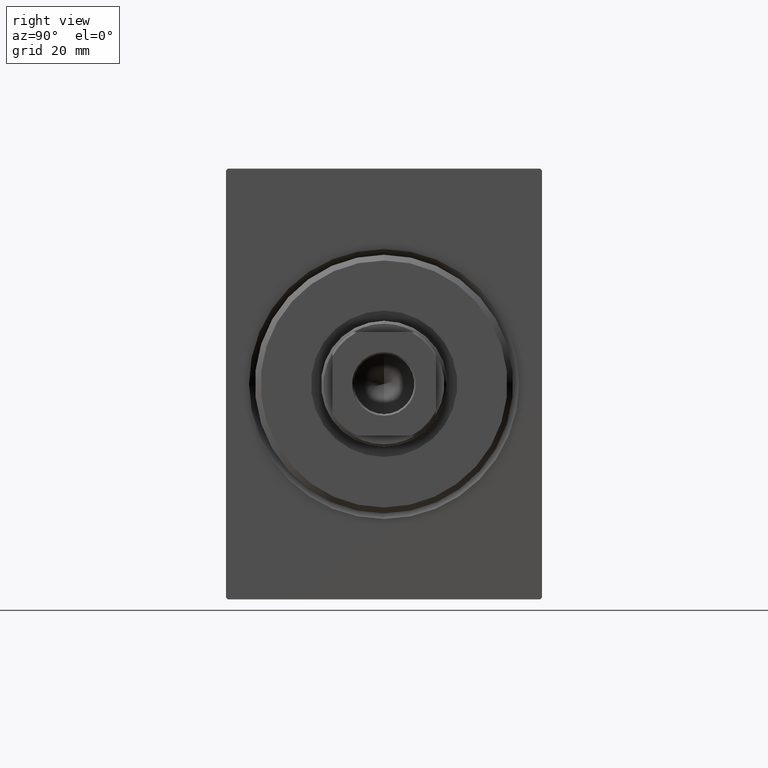
[diagram: clean part render]
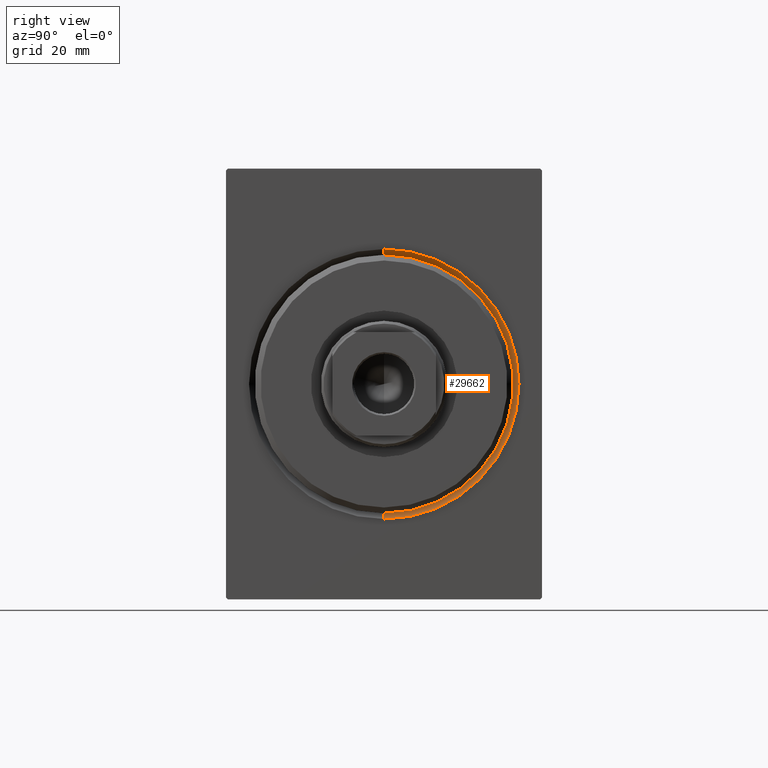
[diagram: same view with one face highlighted and labeled with its STEP entity id]
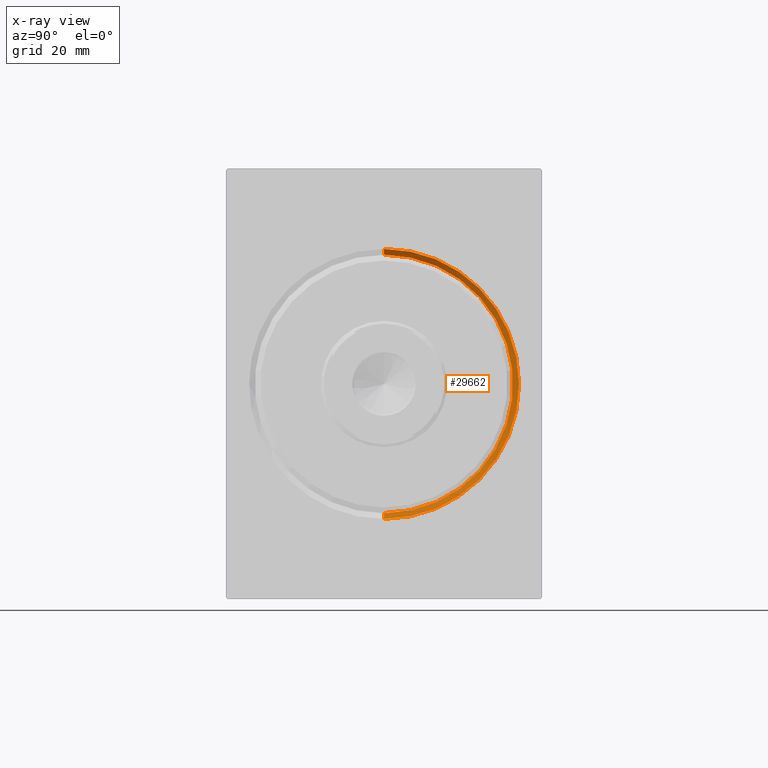
[diagram: x-ray of the same camera — body ghosted, the highlighted face saturated]
A machine part, right view. The second image highlights one B-rep face of the part: STEP entity #29662.
The next image is the same camera in x-ray: the body ghosted, the highlighted face saturated — about 0% of this face is hidden behind the body in this view.
In plain terms, the highlighted conical surface has half-angle 45 deg.
Its self-contained STEP definition (entity closure, byte-faithful):
#282 = EDGE_LOOP ( 'NONE', ( #35660, #8478, #38094, #39786 ) ) ;
#582 = EDGE_CURVE ( 'NONE', #33371, #32227, #13138, .T. ) ;
#673 = DIRECTION ( 'NONE',  ( -1.000000000000000000, 0.000000000000000000, 0.000000000000000000 ) ) ;
#3067 = CARTESIAN_POINT ( 'NONE',  ( 0.000000000000000000, 0.000000000000000000, 0.000000000000000000 ) ) ;
#3653 = CONICAL_SURFACE ( 'NONE', #19458, 22.50000000000000355, 0.7853981633974482790 ) ;
#3833 = CARTESIAN_POINT ( 'NONE',  ( 0.000000000000000000, 2.877919977996280715E-15, -23.50000000000000355 ) ) ;
#4441 = LINE ( 'NONE', #17553, #25809 ) ;
#5533 = CARTESIAN_POINT ( 'NONE',  ( 1.000000000000000888, 2.755455298081545172E-15, -22.50000000000000355 ) ) ;
#6898 = CARTESIAN_POINT ( 'NONE',  ( 1.000000000000000888, 0.000000000000000000, 22.50000000000000355 ) ) ;
#7114 = DIRECTION ( 'NONE',  ( -0.7071067811865474617, 0.000000000000000000, 0.7071067811865474617 ) ) ;
#8157 = CARTESIAN_POINT ( 'NONE',  ( 1.000000000000000888, 0.000000000000000000, 0.000000000000000000 ) ) ;
#8478 = ORIENTED_EDGE ( 'NONE', *, *, #21478, .T. ) ;
#10426 = VECTOR ( 'NONE', #7114, 1000.000000000000114 ) ;
#10431 = CIRCLE ( 'NONE', #18657, 22.50000000000000355 ) ;
#13138 = LINE ( 'NONE', #6898, #10426 ) ;
#13949 = VERTEX_POINT ( 'NONE', #3833 ) ;
#15798 = CARTESIAN_POINT ( 'NONE',  ( 1.000000000000000888, 0.000000000000000000, 0.000000000000000000 ) ) ;
#17553 = CARTESIAN_POINT ( 'NONE',  ( 1.000000000000000888, 2.755455298081545172E-15, -22.50000000000000355 ) ) ;
#18657 = AXIS2_PLACEMENT_3D ( 'NONE', #15798, #673, #42024 ) ;
#19458 = AXIS2_PLACEMENT_3D ( 'NONE', #8157, #31166, #26778 ) ;
#21478 = EDGE_CURVE ( 'NONE', #24403, #13949, #4441, .T. ) ;
#23270 = DIRECTION ( 'NONE',  ( 0.000000000000000000, 0.000000000000000000, -1.000000000000000000 ) ) ;
#24403 = VERTEX_POINT ( 'NONE', #5533 ) ;
#25809 = VECTOR ( 'NONE', #34108, 1000.000000000000114 ) ;
#25969 = CARTESIAN_POINT ( 'NONE',  ( 1.000000000000000888, 0.000000000000000000, 22.50000000000000355 ) ) ;
#26520 = EDGE_CURVE ( 'NONE', #24403, #33371, #10431, .T. ) ;
#26778 = DIRECTION ( 'NONE',  ( 0.000000000000000000, 0.000000000000000000, 1.000000000000000000 ) ) ;
#29230 = CIRCLE ( 'NONE', #31953, 23.50000000000000355 ) ;
#29662 = ADVANCED_FACE ( 'NONE', ( #40833 ), #3653, .F. ) ;
#31166 = DIRECTION ( 'NONE',  ( -1.000000000000000000, 0.000000000000000000, 0.000000000000000000 ) ) ;
#31953 = AXIS2_PLACEMENT_3D ( 'NONE', #3067, #32733, #23270 ) ;
#32227 = VERTEX_POINT ( 'NONE', #41179 ) ;
#32733 = DIRECTION ( 'NONE',  ( 1.000000000000000000, 0.000000000000000000, 0.000000000000000000 ) ) ;
#33371 = VERTEX_POINT ( 'NONE', #25969 ) ;
#34108 = DIRECTION ( 'NONE',  ( -0.7071067811865474617, 8.659560562354932858E-17, -0.7071067811865474617 ) ) ;
#35660 = ORIENTED_EDGE ( 'NONE', *, *, #26520, .F. ) ;
#37180 = EDGE_CURVE ( 'NONE', #32227, #13949, #29230, .T. ) ;
#38094 = ORIENTED_EDGE ( 'NONE', *, *, #37180, .F. ) ;
#39786 = ORIENTED_EDGE ( 'NONE', *, *, #582, .F. ) ;
#40833 = FACE_OUTER_BOUND ( 'NONE', #282, .T. ) ;
#41179 = CARTESIAN_POINT ( 'NONE',  ( 0.000000000000000000, 0.000000000000000000, 23.50000000000000355 ) ) ;
#42024 = DIRECTION ( 'NONE',  ( 0.000000000000000000, 0.000000000000000000, -1.000000000000000000 ) ) ;